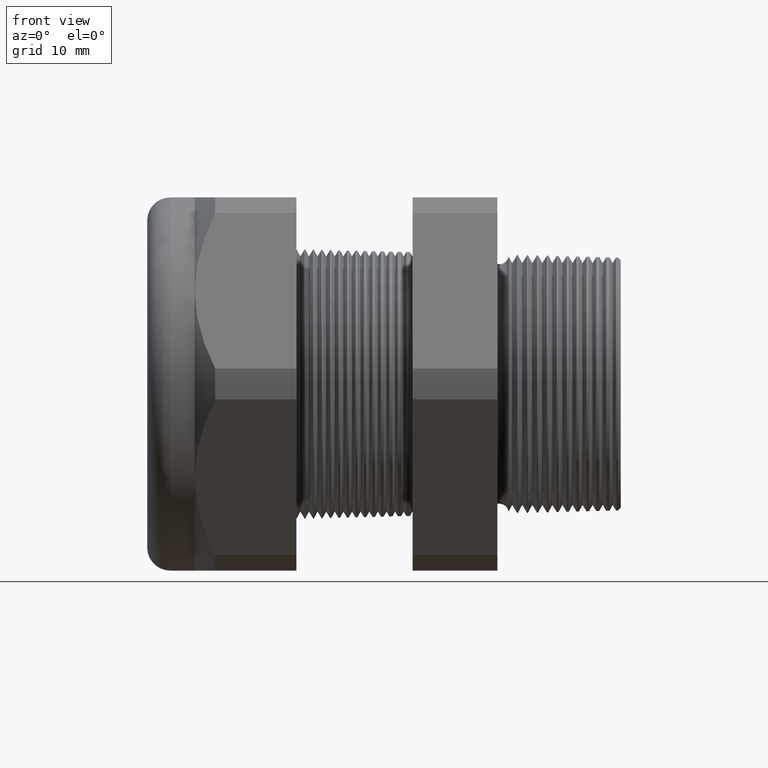
[diagram: clean part render]
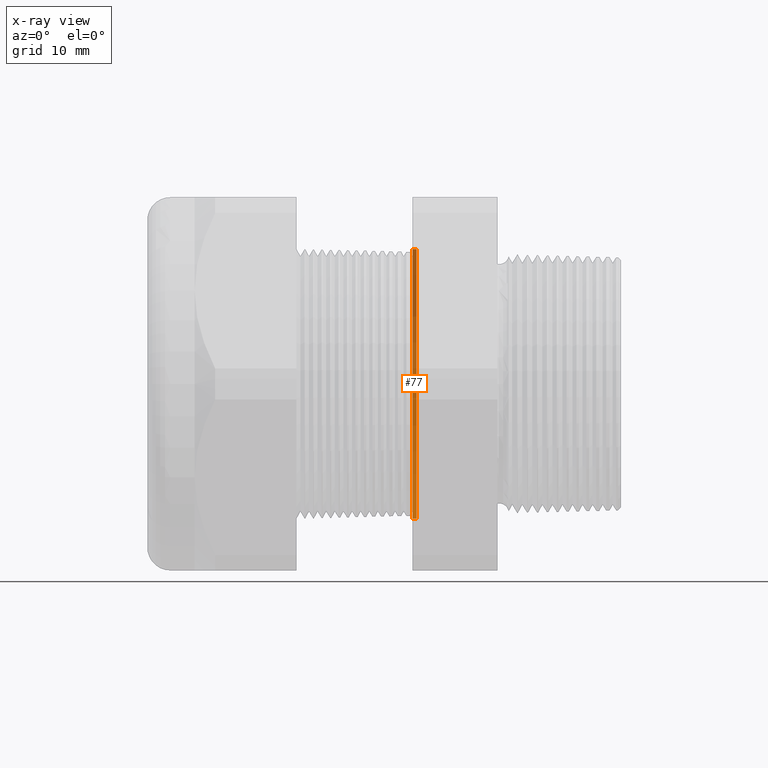
[diagram: x-ray — body ghosted, one internal face saturated and labeled with its STEP entity id]
A machine part, front view, then the same camera in x-ray: the body is ghosted and one INTERNAL B-rep face — a face not visible from any outside direction — is saturated and labeled: STEP entity #77.
In plain terms, the highlighted conical surface has half-angle 1.5 deg.
Its self-contained STEP definition (entity closure, byte-faithful):
#25 = ORIENTED_EDGE ( 'NONE', *, *, #1880, .F. ) ;
#26 = ORIENTED_EDGE ( 'NONE', *, *, #1882, .T. ) ;
#58 = ORIENTED_EDGE ( 'NONE', *, *, #1875, .T. ) ;
#59 = ORIENTED_EDGE ( 'NONE', *, *, #1456, .T. ) ;
#77 = ADVANCED_FACE ( 'NONE', ( #2105 ), #2161, .F. ) ;
#78 = EDGE_LOOP ( 'NONE', ( #25, #26, #58, #59 ) ) ;
#265 = VERTEX_POINT ( 'NONE', #2440 ) ;
#1456 = EDGE_CURVE ( 'NONE', #1887, #1804, #4697, .T. ) ;
#1686 = VERTEX_POINT ( 'NONE', #5030 ) ;
#1804 = VERTEX_POINT ( 'NONE', #5241 ) ;
#1875 = EDGE_CURVE ( 'NONE', #1686, #1887, #5363, .T. ) ;
#1880 = EDGE_CURVE ( 'NONE', #265, #1804, #5409, .T. ) ;
#1882 = EDGE_CURVE ( 'NONE', #265, #1686, #5404, .T. ) ;
#1887 = VERTEX_POINT ( 'NONE', #5390 ) ;
#2105 = FACE_OUTER_BOUND ( 'NONE', #78, .T. ) ;
#2156 = DIRECTION ( 'NONE',  ( 0.0000000000000000000, 0.0000000000000000000, 1.000000000000000000 ) ) ;
#2157 = DIRECTION ( 'NONE',  ( -1.000000000000000000, 0.0000000000000000000, 0.0000000000000000000 ) ) ;
#2158 = CARTESIAN_POINT ( 'NONE',  ( -0.5914573393463203900, 0.0000000000000000000, 0.0000000000000000000 ) ) ;
#2159 = AXIS2_PLACEMENT_3D ( 'NONE', #2158, #2157, #2156 ) ;
#2161 = CONICAL_SURFACE ( 'NONE', #2159, 0.4692443365923945100, 0.02617993877990797800 ) ;
#2440 = CARTESIAN_POINT ( 'NONE',  ( -0.5914573393463203900, 0.0000000000000000000, -0.4692443365923945100 ) ) ;
#4693 = DIRECTION ( 'NONE',  ( 0.0000000000000000000, 0.0000000000000000000, 1.000000000000000000 ) ) ;
#4694 = DIRECTION ( 'NONE',  ( -1.000000000000000000, 0.0000000000000000000, 0.0000000000000000000 ) ) ;
#4695 = CARTESIAN_POINT ( 'NONE',  ( -0.6052755905511809600, 0.0000000000000000000, 0.0000000000000000000 ) ) ;
#4696 = AXIS2_PLACEMENT_3D ( 'NONE', #4695, #4694, #4693 ) ;
#4697 = CIRCLE ( 'NONE', #4696, 0.4696061802346682700 ) ;
#5030 = CARTESIAN_POINT ( 'NONE',  ( -0.5914573393463203900, 5.746585748258992000E-017, 0.4692443365923945100 ) ) ;
#5241 = CARTESIAN_POINT ( 'NONE',  ( -0.6052755905511809600, 5.751017054842014700E-017, -0.4696061802346682100 ) ) ;
#5360 = DIRECTION ( 'NONE',  ( -0.9996573249755573700, 0.0000000000000000000, 0.02617694830786618600 ) ) ;
#5361 = VECTOR ( 'NONE', #5360, 39.37007874015748100 ) ;
#5362 = CARTESIAN_POINT ( 'NONE',  ( -0.5914573393463203900, 0.0000000000000000000, 0.4692443365923945100 ) ) ;
#5363 = LINE ( 'NONE', #5362, #5361 ) ;
#5390 = CARTESIAN_POINT ( 'NONE',  ( -0.6052755905511809600, 0.0000000000000000000, 0.4696061802346682100 ) ) ;
#5400 = DIRECTION ( 'NONE',  ( 0.0000000000000000000, 0.0000000000000000000, -1.000000000000000000 ) ) ;
#5401 = DIRECTION ( 'NONE',  ( 1.000000000000000000, 0.0000000000000000000, 0.0000000000000000000 ) ) ;
#5402 = CARTESIAN_POINT ( 'NONE',  ( -0.5914573393463203900, 0.0000000000000000000, 0.0000000000000000000 ) ) ;
#5403 = AXIS2_PLACEMENT_3D ( 'NONE', #5402, #5401, #5400 ) ;
#5404 = CIRCLE ( 'NONE', #5403, 0.4692443365923945100 ) ;
#5406 = DIRECTION ( 'NONE',  ( -0.9996573249755573700, 3.205751595667405400E-018, -0.02617694830786618600 ) ) ;
#5407 = VECTOR ( 'NONE', #5406, 39.37007874015748100 ) ;
#5408 = CARTESIAN_POINT ( 'NONE',  ( -0.5914573393463203900, 5.746585748258992000E-017, -0.4692443365923945100 ) ) ;
#5409 = LINE ( 'NONE', #5408, #5407 ) ;